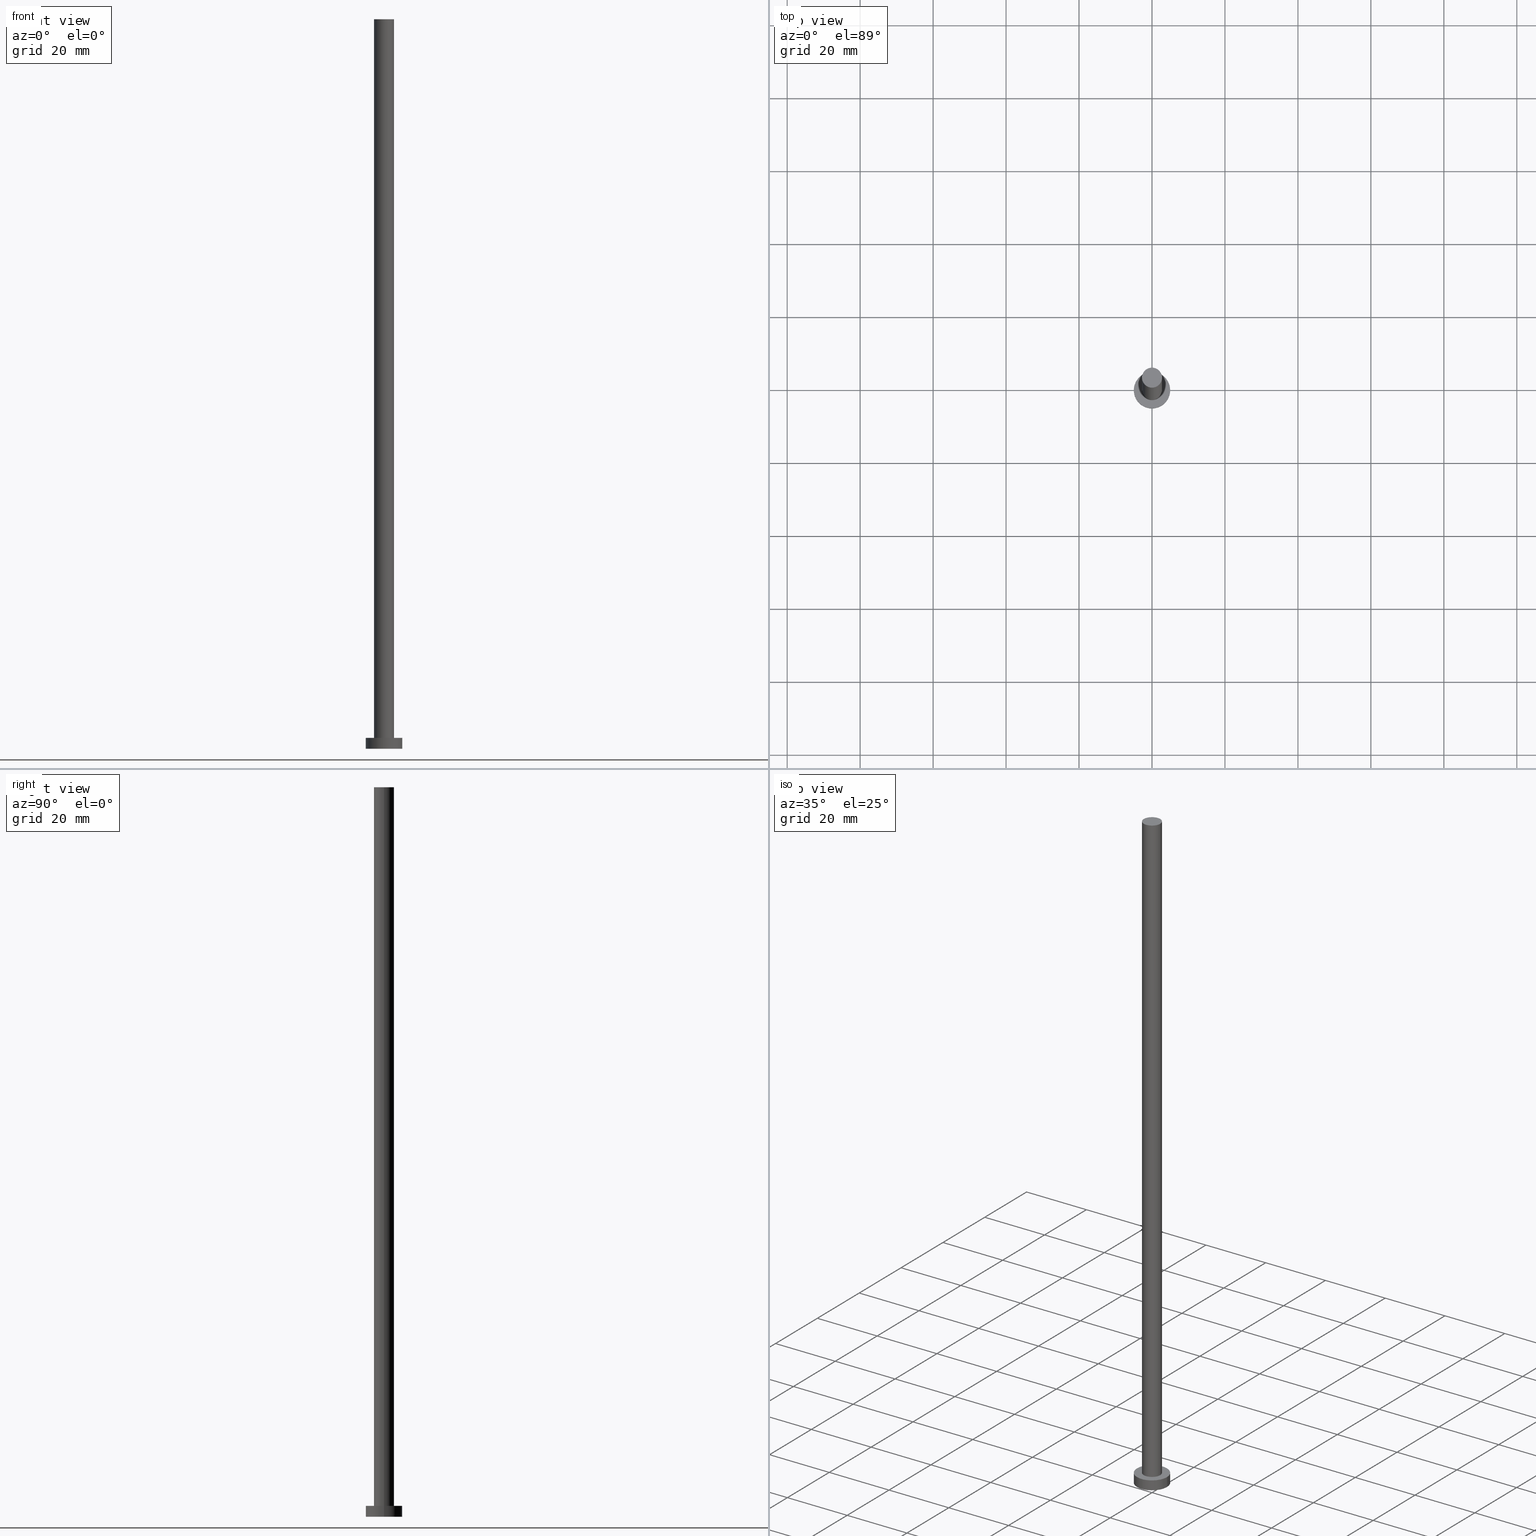
[diagram: canonical four-view strip — front | top / right | iso, engineering-drawing reading convention]
A machine part, canonical four-view strip (front | top / right | iso — engineering-drawing reading convention). The complete STEP part file that produces these views, byte-faithful:
ISO-10303-21;
HEADER;
FILE_DESCRIPTION (( 'STEP AP203' ),
    '1' );
FILE_NAME ('826f.STEP',
    '2023-02-13T15:24:01',
    ( '' ),
    ( '' ),
    'SwSTEP 2.0',
    'SolidWorks 2019',
    '' );
FILE_SCHEMA (( 'CONFIG_CONTROL_DESIGN' ));
ENDSEC;

DATA;
#1 = PERSON_AND_ORGANIZATION ( #63, #51 ) ;
#2 = CC_DESIGN_SECURITY_CLASSIFICATION ( #176, ( #84 ) ) ;
#3 = CC_DESIGN_PERSON_AND_ORGANIZATION_ASSIGNMENT ( #255, #74, ( #84 ) ) ;
#4 = DIRECTION ( 'NONE',  ( 1.000000000000000000, 0.000000000000000000, 0.000000000000000000 ) ) ;
#5 = PERSON_AND_ORGANIZATION ( #63, #51 ) ;
#6 = APPROVAL_PERSON_ORGANIZATION ( #1, #218, #244 ) ;
#7 = APPROVAL_STATUS ( 'not_yet_approved' ) ;
#8 = ORIENTED_EDGE ( 'NONE', *, *, #208, .F. ) ;
#9 = CARTESIAN_POINT ( 'NONE',  ( 0.000000000000000000, 0.000000000000000000, 0.000000000000000000 ) ) ;
#10 = EDGE_LOOP ( 'NONE', ( #82, #236 ) ) ;
#11 = APPROVAL_PERSON_ORGANIZATION ( #161, #166, #133 ) ;
#12 = EDGE_CURVE ( 'NONE', #106, #253, #105, .T. ) ;
#13 = CYLINDRICAL_SURFACE ( 'NONE', #169, 5.000000000000000000 ) ;
#14 = AXIS2_PLACEMENT_3D ( 'NONE', #95, #205, #198 ) ;
#15 = DATE_AND_TIME ( #213, #73 ) ;
#16 = ORIENTED_EDGE ( 'NONE', *, *, #127, .F. ) ;
#17 = CARTESIAN_POINT ( 'NONE',  ( 2.750000000000000000, 3.367778697655221012E-16, 200.0000000000000000 ) ) ;
#18 = PERSON_AND_ORGANIZATION_ROLE ( 'creator' ) ;
#19 = CC_DESIGN_APPROVAL ( #218, ( #176 ) ) ;
#20 =( LENGTH_UNIT ( ) NAMED_UNIT ( * ) SI_UNIT ( .MILLI., .METRE. ) );
#21 = CARTESIAN_POINT ( 'NONE',  ( 0.000000000000000000, 0.000000000000000000, 3.000000000000000000 ) ) ;
#22 = APPROVAL_STATUS ( 'not_yet_approved' ) ;
#23 = EDGE_CURVE ( 'NONE', #253, #101, #232, .T. ) ;
#24 = DIRECTION ( 'NONE',  ( 0.000000000000000000, 0.000000000000000000, 1.000000000000000000 ) ) ;
#25 = ADVANCED_FACE ( 'NONE', ( #250 ), #48, .T. ) ;
#26 = ORIENTED_EDGE ( 'NONE', *, *, #215, .T. ) ;
#27 = ORIENTED_EDGE ( 'NONE', *, *, #210, .F. ) ;
#28 = EDGE_LOOP ( 'NONE', ( #8, #188 ) ) ;
#29 = PERSON_AND_ORGANIZATION_ROLE ( 'creator' ) ;
#30 = EDGE_LOOP ( 'NONE', ( #26, #108 ) ) ;
#31 = VERTEX_POINT ( 'NONE', #149 ) ;
#32 = CARTESIAN_POINT ( 'NONE',  ( 0.000000000000000000, 0.000000000000000000, 0.000000000000000000 ) ) ;
#33 = CARTESIAN_POINT ( 'NONE',  ( -2.750000000000000000, 0.000000000000000000, 200.0000000000000000 ) ) ;
#34 = DIRECTION ( 'NONE',  ( -0.000000000000000000, -0.000000000000000000, -1.000000000000000000 ) ) ;
#35 = ORIENTED_EDGE ( 'NONE', *, *, #215, .F. ) ;
#36 = APPROVAL_DATE_TIME ( #199, #166 ) ;
#37 = AXIS2_PLACEMENT_3D ( 'NONE', #9, #66, #43 ) ;
#38 = FACE_BOUND ( 'NONE', #28, .T. ) ;
#39 = CARTESIAN_POINT ( 'NONE',  ( 0.000000000000000000, 0.000000000000000000, 3.000000000000000000 ) ) ;
#40 =( NAMED_UNIT ( * ) PLANE_ANGLE_UNIT ( ) SI_UNIT ( $, .RADIAN. ) );
#41 = ORIENTED_EDGE ( 'NONE', *, *, #23, .F. ) ;
#42 = CIRCLE ( 'NONE', #163, 2.750000000000000000 ) ;
#43 = DIRECTION ( 'NONE',  ( 1.000000000000000000, 0.000000000000000000, 0.000000000000000000 ) ) ;
#44 = MECHANICAL_CONTEXT ( 'NONE', #121, 'mechanical' ) ;
#45 = DIRECTION ( 'NONE',  ( -0.000000000000000000, -0.000000000000000000, -1.000000000000000000 ) ) ;
#46 = PLANE ( 'NONE',  #146 ) ;
#47 = CARTESIAN_POINT ( 'NONE',  ( 0.000000000000000000, 0.000000000000000000, 3.000000000000000000 ) ) ;
#48 = CYLINDRICAL_SURFACE ( 'NONE', #184, 5.000000000000000000 ) ;
#49 = APPROVAL_ROLE ( '' ) ;
#50 = CC_DESIGN_PERSON_AND_ORGANIZATION_ASSIGNMENT ( #129, #29, ( #195 ) ) ;
#51 = ORGANIZATION ( 'NEUR�EN�', 'NEUR�EN�', '' ) ;
#52 = FACE_OUTER_BOUND ( 'NONE', #10, .T. ) ;
#53 = ORIENTED_EDGE ( 'NONE', *, *, #12, .F. ) ;
#54 = ADVANCED_BREP_SHAPE_REPRESENTATION ( '826f', ( #102, #37 ), #148 ) ;
#55 = FACE_OUTER_BOUND ( 'NONE', #173, .T. ) ;
#56 = PERSON_AND_ORGANIZATION_ROLE ( 'classification_officer' ) ;
#57 = VECTOR ( 'NONE', #138, 1000.000000000000000 ) ;
#58 = DIRECTION ( 'NONE',  ( 1.000000000000000000, 0.000000000000000000, 0.000000000000000000 ) ) ;
#59 = DIRECTION ( 'NONE',  ( 0.000000000000000000, 0.000000000000000000, 1.000000000000000000 ) ) ;
#60 = VERTEX_POINT ( 'NONE', #104 ) ;
#61 = CARTESIAN_POINT ( 'NONE',  ( 5.000000000000000000, 6.123233995736766282E-16, 3.000000000000000000 ) ) ;
#62 = LINE ( 'NONE', #61, #194 ) ;
#63 = PERSON ( 'NEUR�EN�', 'NEUR�EN�', 'NEUR�EN�', ('NEUR�EN�'), ('NEUR�EN�'), ('NEUR�EN�') ) ;
#64 = CIRCLE ( 'NONE', #165, 5.000000000000000000 ) ;
#65 = AXIS2_PLACEMENT_3D ( 'NONE', #207, #24, #162 ) ;
#66 = DIRECTION ( 'NONE',  ( 0.000000000000000000, 0.000000000000000000, 1.000000000000000000 ) ) ;
#67 = ADVANCED_FACE ( 'NONE', ( #191 ), #13, .T. ) ;
#68 = ORIENTED_EDGE ( 'NONE', *, *, #240, .T. ) ;
#69 = DIRECTION ( 'NONE',  ( -1.000000000000000000, 0.000000000000000000, 0.000000000000000000 ) ) ;
#70 = EDGE_CURVE ( 'NONE', #111, #31, #233, .T. ) ;
#71 = CARTESIAN_POINT ( 'NONE',  ( 0.000000000000000000, 0.000000000000000000, 0.000000000000000000 ) ) ;
#72 = EDGE_LOOP ( 'NONE', ( #53, #131, #68, #41 ) ) ;
#73 = LOCAL_TIME ( 16, 24, 1.000000000000000000, #192 ) ;
#74 = PERSON_AND_ORGANIZATION_ROLE ( 'design_supplier' ) ;
#75 = DIRECTION ( 'NONE',  ( 0.000000000000000000, 0.000000000000000000, 1.000000000000000000 ) ) ;
#76 = CC_DESIGN_DATE_AND_TIME_ASSIGNMENT ( #115, #178, ( #176 ) ) ;
#77 = APPROVAL_STATUS ( 'not_yet_approved' ) ;
#78 = VECTOR ( 'NONE', #34, 1000.000000000000000 ) ;
#79 = FACE_OUTER_BOUND ( 'NONE', #30, .T. ) ;
#80 = CC_DESIGN_DATE_AND_TIME_ASSIGNMENT ( #15, #220, ( #195 ) ) ;
#81 = ADVANCED_FACE ( 'NONE', ( #201 ), #120, .T. ) ;
#82 = ORIENTED_EDGE ( 'NONE', *, *, #230, .F. ) ;
#83 = EDGE_LOOP ( 'NONE', ( #168, #109 ) ) ;
#84 = PRODUCT_DEFINITION_FORMATION_WITH_SPECIFIED_SOURCE ( 'LIBOVOLN�', '', #98, .NOT_KNOWN. ) ;
#85 = ORIENTED_EDGE ( 'NONE', *, *, #118, .F. ) ;
#86 = ORIENTED_EDGE ( 'NONE', *, *, #70, .T. ) ;
#87 = CARTESIAN_POINT ( 'NONE',  ( 0.000000000000000000, 0.000000000000000000, 3.000000000000000000 ) ) ;
#88 = ORIENTED_EDGE ( 'NONE', *, *, #70, .F. ) ;
#89 = ORIENTED_EDGE ( 'NONE', *, *, #223, .F. ) ;
#90 = LINE ( 'NONE', #17, #78 ) ;
#91 = EDGE_LOOP ( 'NONE', ( #89, #35, #86, #152 ) ) ;
#92 = DIRECTION ( 'NONE',  ( 1.000000000000000000, 0.000000000000000000, 0.000000000000000000 ) ) ;
#93 = VERTEX_POINT ( 'NONE', #242 ) ;
#94 = AXIS2_PLACEMENT_3D ( 'NONE', #147, #219, #172 ) ;
#95 = CARTESIAN_POINT ( 'NONE',  ( 0.000000000000000000, 0.000000000000000000, 200.0000000000000000 ) ) ;
#96 = APPROVAL ( #7, 'NEUR�EN�' ) ;
#97 = DIRECTION ( 'NONE',  ( 0.000000000000000000, 0.000000000000000000, 1.000000000000000000 ) ) ;
#98 = PRODUCT ( '826f', '826f', '', ( #44 ) ) ;
#99 = CIRCLE ( 'NONE', #159, 5.000000000000000000 ) ;
#100 = ORIENTED_EDGE ( 'NONE', *, *, #208, .T. ) ;
#101 = VERTEX_POINT ( 'NONE', #134 ) ;
#102 = MANIFOLD_SOLID_BREP ( 'P�idat vysunut�m3', #151 ) ;
#103 = APPROVAL_DATE_TIME ( #234, #96 ) ;
#104 = CARTESIAN_POINT ( 'NONE',  ( 5.000000000000000000, 6.123233995736766282E-16, 3.000000000000000000 ) ) ;
#105 = CIRCLE ( 'NONE', #94, 2.750000000000000000 ) ;
#106 = VERTEX_POINT ( 'NONE', #193 ) ;
#107 = DESIGN_CONTEXT ( 'detailed design', #231, 'design' ) ;
#108 = ORIENTED_EDGE ( 'NONE', *, *, #118, .T. ) ;
#109 = ORIENTED_EDGE ( 'NONE', *, *, #12, .T. ) ;
#110 = CARTESIAN_POINT ( 'NONE',  ( 0.000000000000000000, 0.000000000000000000, 200.0000000000000000 ) ) ;
#111 = VERTEX_POINT ( 'NONE', #114 ) ;
#112 = CIRCLE ( 'NONE', #158, 5.000000000000000000 ) ;
#113 = PERSON_AND_ORGANIZATION ( #63, #51 ) ;
#114 = CARTESIAN_POINT ( 'NONE',  ( -5.000000000000000000, 0.000000000000000000, 3.000000000000000000 ) ) ;
#115 = DATE_AND_TIME ( #224, #125 ) ;
#116 = APPROVAL_PERSON_ORGANIZATION ( #5, #96, #49 ) ;
#117 = DIRECTION ( 'NONE',  ( -0.000000000000000000, -0.000000000000000000, -1.000000000000000000 ) ) ;
#118 = EDGE_CURVE ( 'NONE', #60, #111, #112, .T. ) ;
#119 = PRODUCT_DEFINITION_SHAPE ( 'NONE', 'NONE',  #195 ) ;
#120 = PLANE ( 'NONE',  #14 ) ;
#121 = APPLICATION_CONTEXT ( 'configuration controlled 3d designs of mechanical parts and assemblies' ) ;
#122 = DIRECTION ( 'NONE',  ( 0.000000000000000000, 0.000000000000000000, 1.000000000000000000 ) ) ;
#123 = DATE_AND_TIME ( #182, #186 ) ;
#124 = ADVANCED_FACE ( 'NONE', ( #52 ), #46, .F. ) ;
#125 = LOCAL_TIME ( 16, 24, 1.000000000000000000, #135 ) ;
#126 = DIRECTION ( 'NONE',  ( -0.000000000000000000, -0.000000000000000000, -1.000000000000000000 ) ) ;
#127 = EDGE_CURVE ( 'NONE', #106, #222, #90, .T. ) ;
#128 = CYLINDRICAL_SURFACE ( 'NONE', #180, 2.750000000000000000 ) ;
#129 = PERSON_AND_ORGANIZATION ( #63, #51 ) ;
#130 = CARTESIAN_POINT ( 'NONE',  ( 0.000000000000000000, 0.000000000000000000, 3.000000000000000000 ) ) ;
#131 = ORIENTED_EDGE ( 'NONE', *, *, #127, .T. ) ;
#132 = CIRCLE ( 'NONE', #65, 2.750000000000000000 ) ;
#133 = APPROVAL_ROLE ( '' ) ;
#134 = CARTESIAN_POINT ( 'NONE',  ( -2.750000000000000000, 0.000000000000000000, 3.000000000000000000 ) ) ;
#135 = COORDINATED_UNIVERSAL_TIME_OFFSET ( 1, 0, .AHEAD. ) ;
#136 = DIRECTION ( 'NONE',  ( 1.000000000000000000, 0.000000000000000000, 0.000000000000000000 ) ) ;
#137 = ADVANCED_FACE ( 'NONE', ( #175 ), #155, .T. ) ;
#138 = DIRECTION ( 'NONE',  ( -0.000000000000000000, -0.000000000000000000, -1.000000000000000000 ) ) ;
#139 = DIRECTION ( 'NONE',  ( -1.000000000000000000, 0.000000000000000000, 0.000000000000000000 ) ) ;
#140 = COORDINATED_UNIVERSAL_TIME_OFFSET ( 1, 0, .AHEAD. ) ;
#141 = CC_DESIGN_APPROVAL ( #96, ( #195 ) ) ;
#142 = DIRECTION ( 'NONE',  ( 0.000000000000000000, 0.000000000000000000, 1.000000000000000000 ) ) ;
#143 = EDGE_CURVE ( 'NONE', #93, #31, #64, .T. ) ;
#144 = CALENDAR_DATE ( 2023, 13, 2 ) ;
#145 = PERSON_AND_ORGANIZATION_ROLE ( 'design_owner' ) ;
#146 = AXIS2_PLACEMENT_3D ( 'NONE', #71, #150, #251 ) ;
#147 = CARTESIAN_POINT ( 'NONE',  ( 0.000000000000000000, 0.000000000000000000, 200.0000000000000000 ) ) ;
#148 =( GEOMETRIC_REPRESENTATION_CONTEXT ( 3 ) GLOBAL_UNCERTAINTY_ASSIGNED_CONTEXT ( ( #190 ) ) GLOBAL_UNIT_ASSIGNED_CONTEXT ( ( #20, #40, #177 ) ) REPRESENTATION_CONTEXT ( 'NONE', 'WORKASPACE' ) );
#149 = CARTESIAN_POINT ( 'NONE',  ( -5.000000000000000000, 0.000000000000000000, 0.000000000000000000 ) ) ;
#150 = DIRECTION ( 'NONE',  ( 0.000000000000000000, 0.000000000000000000, 1.000000000000000000 ) ) ;
#151 = CLOSED_SHELL ( 'NONE', ( #137, #25, #67, #252, #124, #187, #81 ) ) ;
#152 = ORIENTED_EDGE ( 'NONE', *, *, #230, .T. ) ;
#153 = PRODUCT_RELATED_PRODUCT_CATEGORY ( 'detail', '', ( #98 ) ) ;
#154 = CALENDAR_DATE ( 2023, 13, 2 ) ;
#155 = CYLINDRICAL_SURFACE ( 'NONE', #214, 2.750000000000000000 ) ;
#156 = SECURITY_CLASSIFICATION_LEVEL ( 'unclassified' ) ;
#157 = CARTESIAN_POINT ( 'NONE',  ( 0.000000000000000000, 0.000000000000000000, 0.000000000000000000 ) ) ;
#158 = AXIS2_PLACEMENT_3D ( 'NONE', #47, #221, #170 ) ;
#159 = AXIS2_PLACEMENT_3D ( 'NONE', #226, #75, #4 ) ;
#160 = CC_DESIGN_PERSON_AND_ORGANIZATION_ASSIGNMENT ( #113, #18, ( #84 ) ) ;
#161 = PERSON_AND_ORGANIZATION ( #63, #51 ) ;
#162 = DIRECTION ( 'NONE',  ( 1.000000000000000000, 0.000000000000000000, 0.000000000000000000 ) ) ;
#163 = AXIS2_PLACEMENT_3D ( 'NONE', #21, #142, #136 ) ;
#164 = APPROVAL_DATE_TIME ( #123, #218 ) ;
#165 = AXIS2_PLACEMENT_3D ( 'NONE', #32, #197, #92 ) ;
#166 = APPROVAL ( #22, 'NEUR�EN�' ) ;
#167 = PERSON_AND_ORGANIZATION ( #63, #51 ) ;
#168 = ORIENTED_EDGE ( 'NONE', *, *, #210, .T. ) ;
#169 = AXIS2_PLACEMENT_3D ( 'NONE', #87, #171, #69 ) ;
#170 = DIRECTION ( 'NONE',  ( 1.000000000000000000, 0.000000000000000000, 0.000000000000000000 ) ) ;
#171 = DIRECTION ( 'NONE',  ( -0.000000000000000000, -0.000000000000000000, -1.000000000000000000 ) ) ;
#172 = DIRECTION ( 'NONE',  ( 1.000000000000000000, 0.000000000000000000, 0.000000000000000000 ) ) ;
#173 = EDGE_LOOP ( 'NONE', ( #16, #27, #239, #100 ) ) ;
#174 = ORIENTED_EDGE ( 'NONE', *, *, #143, .T. ) ;
#175 = FACE_OUTER_BOUND ( 'NONE', #72, .T. ) ;
#176 = SECURITY_CLASSIFICATION ( '', '', #156 ) ;
#177 =( NAMED_UNIT ( * ) SI_UNIT ( $, .STERADIAN. ) SOLID_ANGLE_UNIT ( ) );
#178 = DATE_TIME_ROLE ( 'classification_date' ) ;
#179 = VECTOR ( 'NONE', #45, 1000.000000000000000 ) ;
#180 = AXIS2_PLACEMENT_3D ( 'NONE', #249, #235, #139 ) ;
#181 = DIRECTION ( 'NONE',  ( 1.000000000000000000, 0.000000000000000000, -0.000000000000000000 ) ) ;
#182 = CALENDAR_DATE ( 2023, 13, 2 ) ;
#183 = CARTESIAN_POINT ( 'NONE',  ( 0.000000000000000000, 0.000000000000000000, 3.000000000000000000 ) ) ;
#184 = AXIS2_PLACEMENT_3D ( 'NONE', #130, #126, #211 ) ;
#185 = APPLICATION_PROTOCOL_DEFINITION ( 'international standard', 'config_control_design', 1994, #121 ) ;
#186 = LOCAL_TIME ( 16, 24, 1.000000000000000000, #140 ) ;
#187 = ADVANCED_FACE ( 'NONE', ( #55 ), #128, .T. ) ;
#188 = ORIENTED_EDGE ( 'NONE', *, *, #240, .F. ) ;
#189 = ORIENTED_EDGE ( 'NONE', *, *, #223, .T. ) ;
#190 = UNCERTAINTY_MEASURE_WITH_UNIT (LENGTH_MEASURE( 1.000000000000000082E-05 ), #20, 'distance_accuracy_value', 'NONE');
#191 = FACE_OUTER_BOUND ( 'NONE', #91, .T. ) ;
#192 = COORDINATED_UNIVERSAL_TIME_OFFSET ( 1, 0, .AHEAD. ) ;
#193 = CARTESIAN_POINT ( 'NONE',  ( 2.750000000000000000, 3.367778697655221012E-16, 200.0000000000000000 ) ) ;
#194 = VECTOR ( 'NONE', #117, 1000.000000000000000 ) ;
#195 = PRODUCT_DEFINITION ( 'NEZN�M�', '', #84, #107 ) ;
#196 = COORDINATED_UNIVERSAL_TIME_OFFSET ( 1, 0, .AHEAD. ) ;
#197 = DIRECTION ( 'NONE',  ( 0.000000000000000000, 0.000000000000000000, 1.000000000000000000 ) ) ;
#198 = DIRECTION ( 'NONE',  ( 1.000000000000000000, 0.000000000000000000, -0.000000000000000000 ) ) ;
#199 = DATE_AND_TIME ( #154, #238 ) ;
#200 = DIRECTION ( 'NONE',  ( -0.000000000000000000, -0.000000000000000000, -1.000000000000000000 ) ) ;
#201 = FACE_OUTER_BOUND ( 'NONE', #83, .T. ) ;
#202 = COORDINATED_UNIVERSAL_TIME_OFFSET ( 1, 0, .AHEAD. ) ;
#203 = CARTESIAN_POINT ( 'NONE',  ( -2.750000000000000000, 0.000000000000000000, 200.0000000000000000 ) ) ;
#204 = DIRECTION ( 'NONE',  ( 1.000000000000000000, 0.000000000000000000, 0.000000000000000000 ) ) ;
#205 = DIRECTION ( 'NONE',  ( 0.000000000000000000, 0.000000000000000000, 1.000000000000000000 ) ) ;
#206 = LOCAL_TIME ( 16, 24, 1.000000000000000000, #196 ) ;
#207 = CARTESIAN_POINT ( 'NONE',  ( 0.000000000000000000, 0.000000000000000000, 200.0000000000000000 ) ) ;
#208 = EDGE_CURVE ( 'NONE', #101, #222, #216, .T. ) ;
#209 = SHAPE_DEFINITION_REPRESENTATION ( #119, #54 ) ;
#210 = EDGE_CURVE ( 'NONE', #253, #106, #132, .T. ) ;
#211 = DIRECTION ( 'NONE',  ( -1.000000000000000000, 0.000000000000000000, 0.000000000000000000 ) ) ;
#212 = CARTESIAN_POINT ( 'NONE',  ( -5.000000000000000000, 0.000000000000000000, 3.000000000000000000 ) ) ;
#213 = CALENDAR_DATE ( 2023, 13, 2 ) ;
#214 = AXIS2_PLACEMENT_3D ( 'NONE', #110, #200, #241 ) ;
#215 = EDGE_CURVE ( 'NONE', #111, #60, #99, .T. ) ;
#216 = CIRCLE ( 'NONE', #229, 2.750000000000000000 ) ;
#217 = AXIS2_PLACEMENT_3D ( 'NONE', #183, #97, #181 ) ;
#218 = APPROVAL ( #77, 'NEUR�EN�' ) ;
#219 = DIRECTION ( 'NONE',  ( 0.000000000000000000, 0.000000000000000000, 1.000000000000000000 ) ) ;
#220 = DATE_TIME_ROLE ( 'creation_date' ) ;
#221 = DIRECTION ( 'NONE',  ( 0.000000000000000000, 0.000000000000000000, 1.000000000000000000 ) ) ;
#222 = VERTEX_POINT ( 'NONE', #225 ) ;
#223 = EDGE_CURVE ( 'NONE', #60, #93, #62, .T. ) ;
#224 = CALENDAR_DATE ( 2023, 13, 2 ) ;
#225 = CARTESIAN_POINT ( 'NONE',  ( 2.750000000000000000, 3.367778697655221012E-16, 3.000000000000000000 ) ) ;
#226 = CARTESIAN_POINT ( 'NONE',  ( 0.000000000000000000, 0.000000000000000000, 3.000000000000000000 ) ) ;
#227 = CC_DESIGN_APPROVAL ( #166, ( #84 ) ) ;
#228 = PLANE ( 'NONE',  #217 ) ;
#229 = AXIS2_PLACEMENT_3D ( 'NONE', #39, #122, #58 ) ;
#230 = EDGE_CURVE ( 'NONE', #31, #93, #246, .T. ) ;
#231 = APPLICATION_CONTEXT ( 'configuration controlled 3d designs of mechanical parts and assemblies' ) ;
#232 = LINE ( 'NONE', #33, #179 ) ;
#233 = LINE ( 'NONE', #212, #57 ) ;
#234 = DATE_AND_TIME ( #144, #206 ) ;
#235 = DIRECTION ( 'NONE',  ( -0.000000000000000000, -0.000000000000000000, -1.000000000000000000 ) ) ;
#236 = ORIENTED_EDGE ( 'NONE', *, *, #143, .F. ) ;
#237 = CC_DESIGN_PERSON_AND_ORGANIZATION_ASSIGNMENT ( #243, #56, ( #176 ) ) ;
#238 = LOCAL_TIME ( 16, 24, 1.000000000000000000, #202 ) ;
#239 = ORIENTED_EDGE ( 'NONE', *, *, #23, .T. ) ;
#240 = EDGE_CURVE ( 'NONE', #222, #101, #42, .T. ) ;
#241 = DIRECTION ( 'NONE',  ( -1.000000000000000000, 0.000000000000000000, 0.000000000000000000 ) ) ;
#242 = CARTESIAN_POINT ( 'NONE',  ( 5.000000000000000000, 6.123233995736766282E-16, 0.000000000000000000 ) ) ;
#243 = PERSON_AND_ORGANIZATION ( #63, #51 ) ;
#244 = APPROVAL_ROLE ( '' ) ;
#245 = CC_DESIGN_PERSON_AND_ORGANIZATION_ASSIGNMENT ( #167, #145, ( #98 ) ) ;
#246 = CIRCLE ( 'NONE', #254, 5.000000000000000000 ) ;
#247 = APPLICATION_PROTOCOL_DEFINITION ( 'international standard', 'config_control_design', 1994, #231 ) ;
#248 = EDGE_LOOP ( 'NONE', ( #85, #189, #174, #88 ) ) ;
#249 = CARTESIAN_POINT ( 'NONE',  ( 0.000000000000000000, 0.000000000000000000, 200.0000000000000000 ) ) ;
#250 = FACE_OUTER_BOUND ( 'NONE', #248, .T. ) ;
#251 = DIRECTION ( 'NONE',  ( 1.000000000000000000, 0.000000000000000000, -0.000000000000000000 ) ) ;
#252 = ADVANCED_FACE ( 'NONE', ( #38, #79 ), #228, .T. ) ;
#253 = VERTEX_POINT ( 'NONE', #203 ) ;
#254 = AXIS2_PLACEMENT_3D ( 'NONE', #157, #59, #204 ) ;
#255 = PERSON_AND_ORGANIZATION ( #63, #51 ) ;
ENDSEC;
END-ISO-10303-21;
